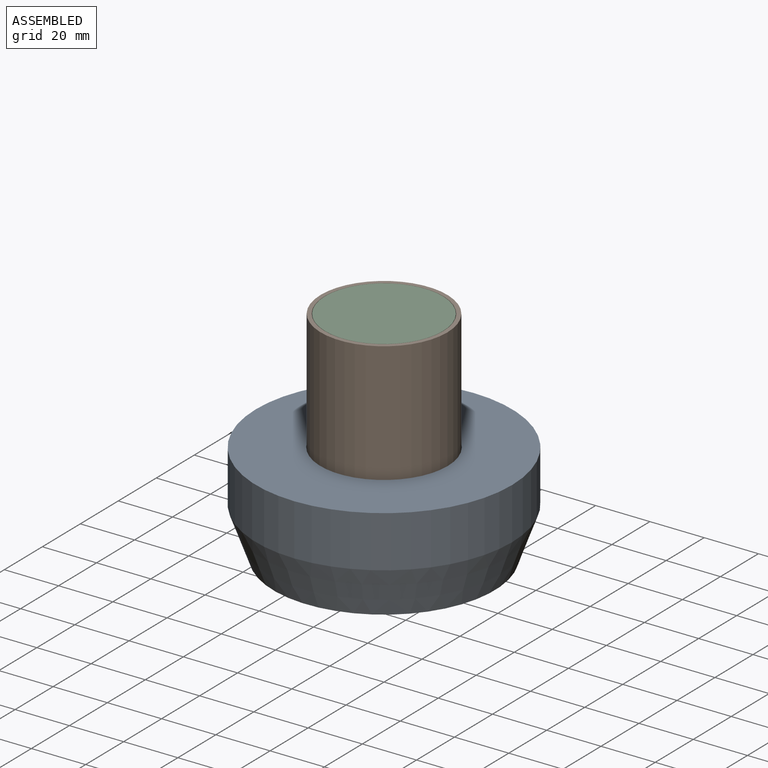
[diagram: assembled view]
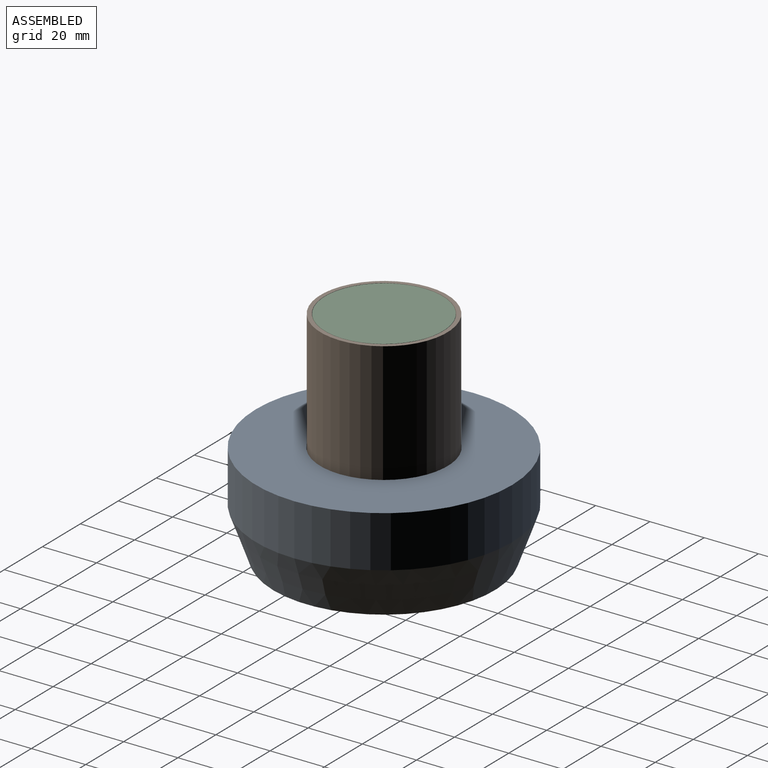
[diagram: assembled view, second angle]
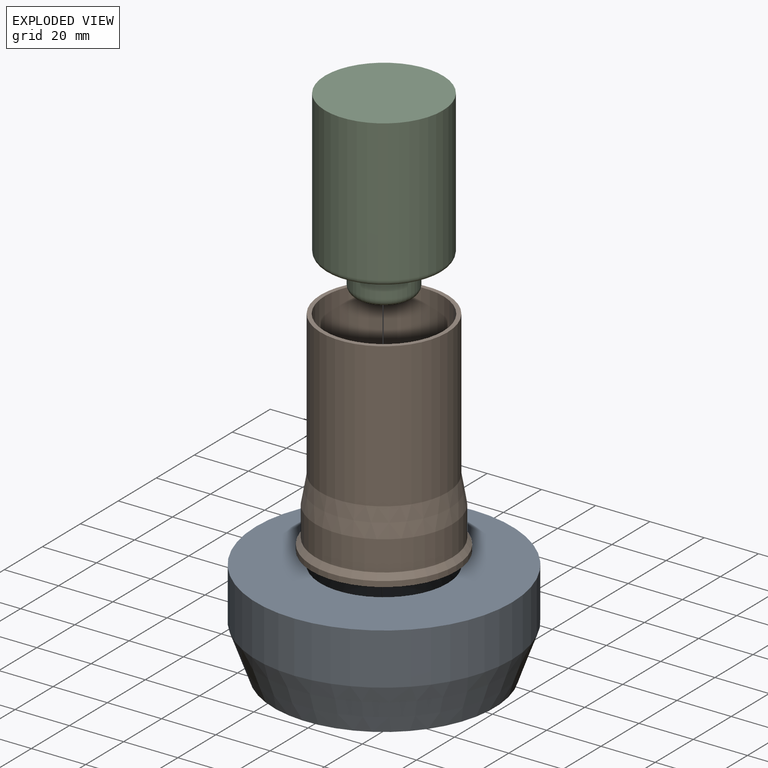
[diagram: exploded view]
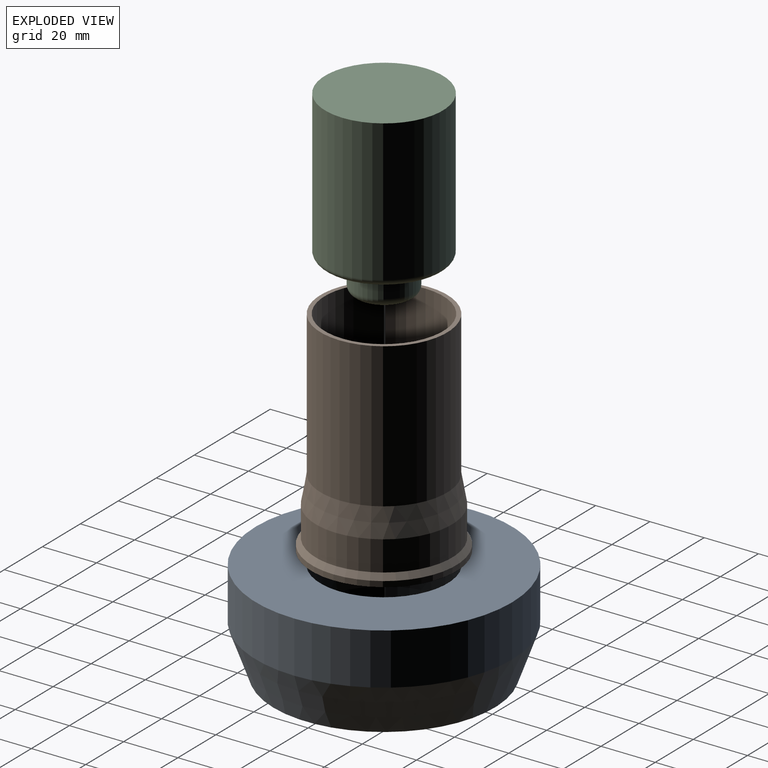
[diagram: exploded view, second angle]
ASSEMBLY  parts=3 mates=3
PART A: 9 faces, bbox 94.5x94.5x36.8 mm
  f0: cylinder r=26.8mm len=53.59mm, axis (0,0,-1), area 776.5mm2, adj f1,f8
  f1: plane 81.54x81.54mm, normal (0,0,-1), area 2966.4mm2, adj f0,f2
  f2: cone r=47.24mm half-angle=20deg, axis (0,0,1), area 5231.8mm2, adj f1,f3
  f3: cylinder r=47.24mm len=94.49mm, axis (0,0,-1), area 5654.7mm2, adj f2,f4
  f4: plane 94.49x94.49mm, normal (0,0,1), area 5277.6mm2, adj f3,f5
  f5: cylinder r=23.49mm len=46.99mm, axis (0,0,-1), area 1310.7mm2, adj f4,f6
  f6: cone r=25.29mm half-angle=10deg, axis (0,0,-1), area 1581mm2, adj f5,f7
  f7: cylinder r=25.29mm len=50.57mm, axis (0,0,-1), area 1750.8mm2, adj f6,f8
  f8: cone r=26.8mm half-angle=35deg, axis (0,0,-1), area 431.2mm2, adj f0,f7
PART B: 19 faces, bbox 53.3x53.3x78.7 mm
  f0: plane 16.76x16.76mm, normal (0,0,1), area 200.5mm2, adj f1,f18
  f1: cylinder r=2.54mm len=8.87mm, axis (0,0,-1), area 141.5mm2, adj f0,f2
  f2: torus R=3.56mm, axis (0,0,-1), area 29.2mm2, adj f1,f3
  f3: plane 8.13x8.13mm, normal (0,0,-1), area 12.2mm2, adj f2,f4
  f4: torus R=4.06mm, axis (0,0,-1), area 47.2mm2, adj f3,f5
  f5: cylinder r=5.08mm len=10.16mm, axis (0,0,-1), area 40.5mm2, adj f4,f6
  f6: plane 53.34x53.34mm, normal (0,0,-1), area 2153.5mm2, adj f5,f7
  f7: cylinder r=26.67mm len=53.34mm, axis (0,0,-1), area 340.5mm2, adj f6,f8
  f8: cone r=26.67mm half-angle=35deg, axis (0,0,-1), area 429.1mm2, adj f7,f9
  f9: cylinder r=25.16mm len=50.32mm, axis (0,0,-1), area 1746.6mm2, adj f8,f10
  f10: cone r=25.16mm half-angle=10deg, axis (0,0,-1), area 1572.7mm2, adj f9,f11
  f11: cylinder r=23.37mm len=53.34mm, axis (0,0,-1), area 7831.3mm2, adj f10,f12
  f12: plane 46.73x46.73mm, normal (0,0,1), area 216.5mm2, adj f11,f13
  f13: cylinder r=21.84mm len=52.32mm, axis (0,0,-1), area 7181.1mm2, adj f12,f14
  f14: torus R=19.56mm, axis (0,0,-1), area 474.1mm2, adj f13,f15
  f15: plane 39.11x39.11mm, normal (0,0,1), area 543mm2, adj f14,f16
  f16: torus R=14.48mm, axis (0,0,-1), area 377.2mm2, adj f15,f17
  f17: cylinder r=11.43mm len=22.86mm, axis (0,0,-1), area 421.2mm2, adj f16,f18
  f18: torus R=8.38mm, axis (0,0,-1), area 310.5mm2, adj f0,f17
PART C: 8 faces, bbox 47x47x66.4 mm
  f0: cylinder r=21.72mm len=52.32mm, axis (0,0,-1), area 7139.3mm2, adj f1,f7
  f1: plane 43.43x43.43mm, normal (0,0,1), area 1481.5mm2, adj f0
  f2: plane 16.76x16.76mm, normal (0,0,-1), area 220.7mm2, adj f3
  f3: torus R=8.38mm, axis (0,0,-1), area 295.3mm2, adj f2,f4
  f4: cylinder r=11.3mm len=22.61mm, axis (0,0,-1), area 416.5mm2, adj f3,f5
  f5: torus R=14.48mm, axis (0,0,-1), area 390.3mm2, adj f4,f6
  f6: plane 39.11x39.11mm, normal (0,0,-1), area 543mm2, adj f5,f7
  f7: torus R=19.56mm, axis (0,0,-1), area 446mm2, adj f0,f6
PLACE A t=(0,0,-0.04)mm
PLACE B at identity fixed
PLACE C at identity
MATE slider A.f0 <-> B.f1  axis (0,0,-1) through (0,0,2.03)mm
MATE slider A.f0 <-> B.f1  axis (0,0,-1) through (0,0,2.03)mm
MATE slider C.f0 <-> B.f1  axis (0,0,1) through (0,0,78.74)mm
